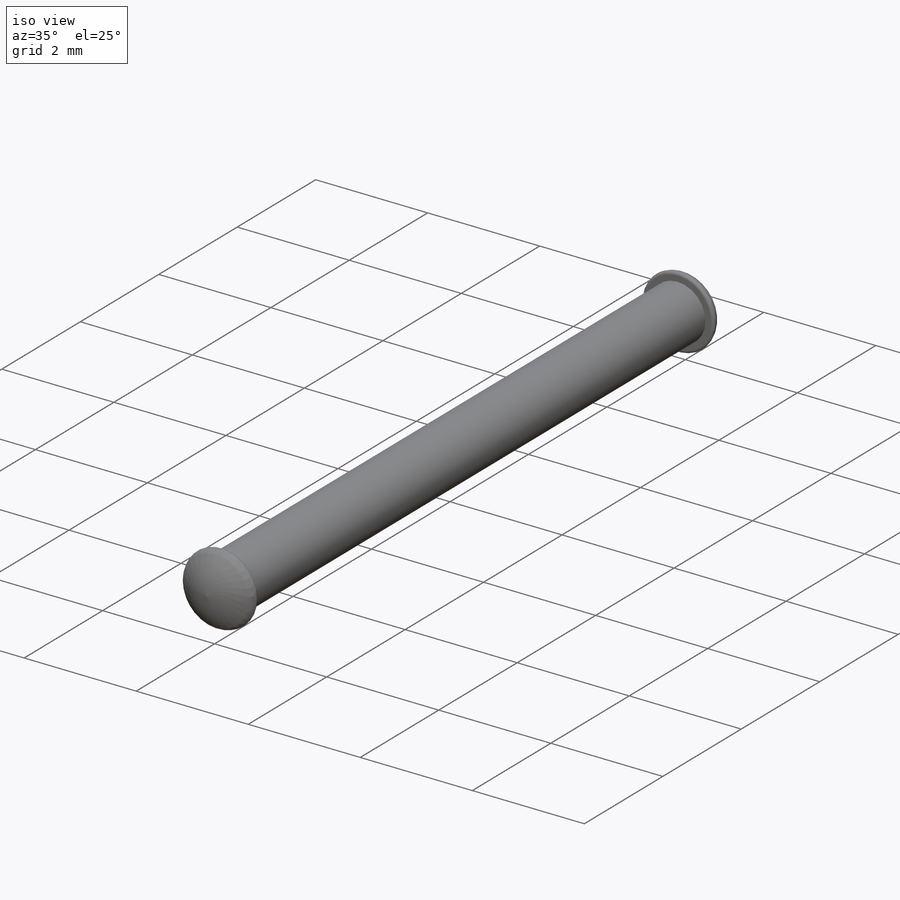
[diagram: iso view]
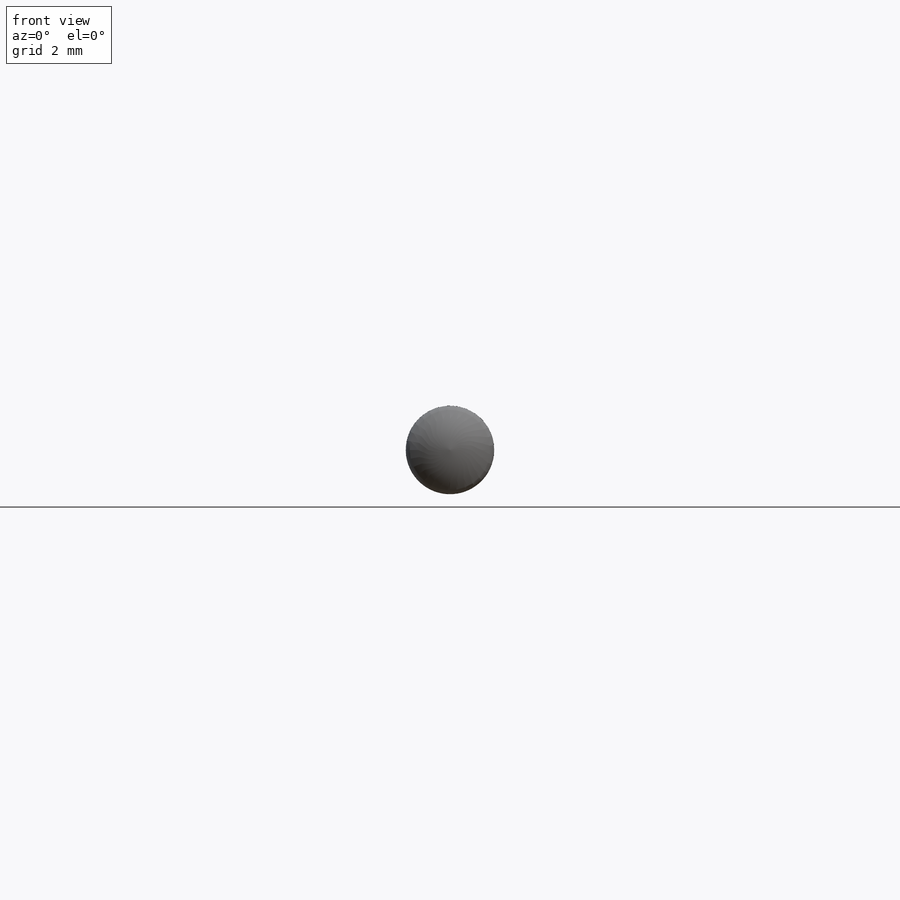
[diagram: front view]
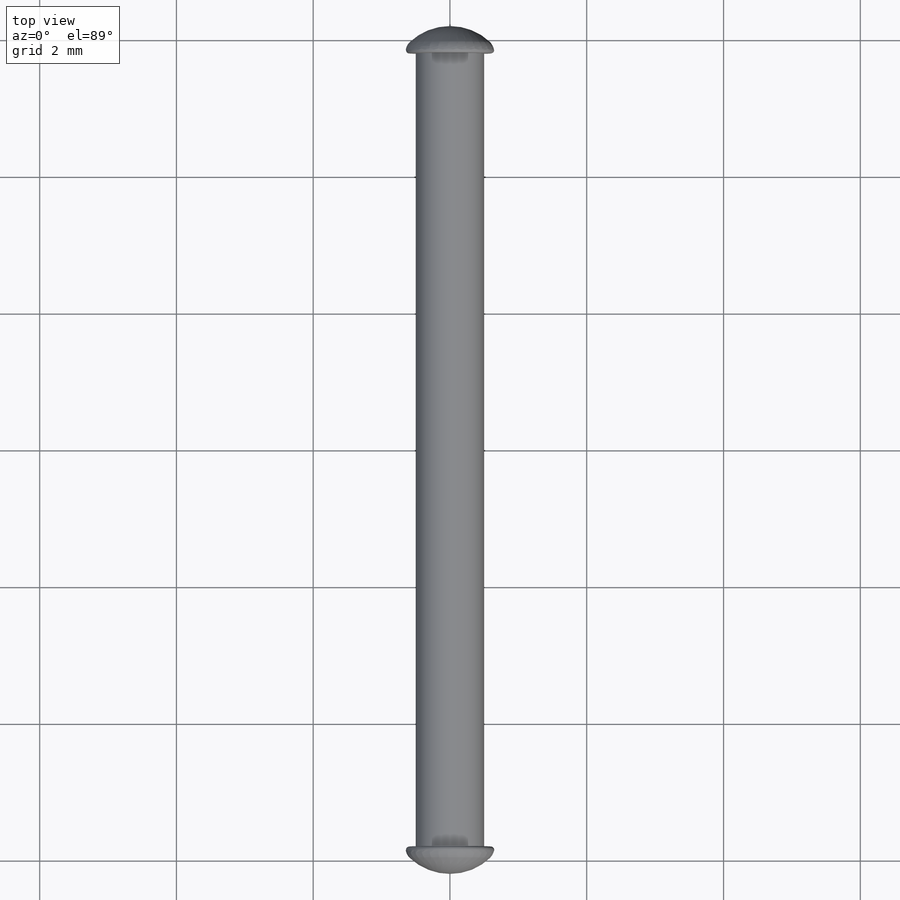
[diagram: top view]
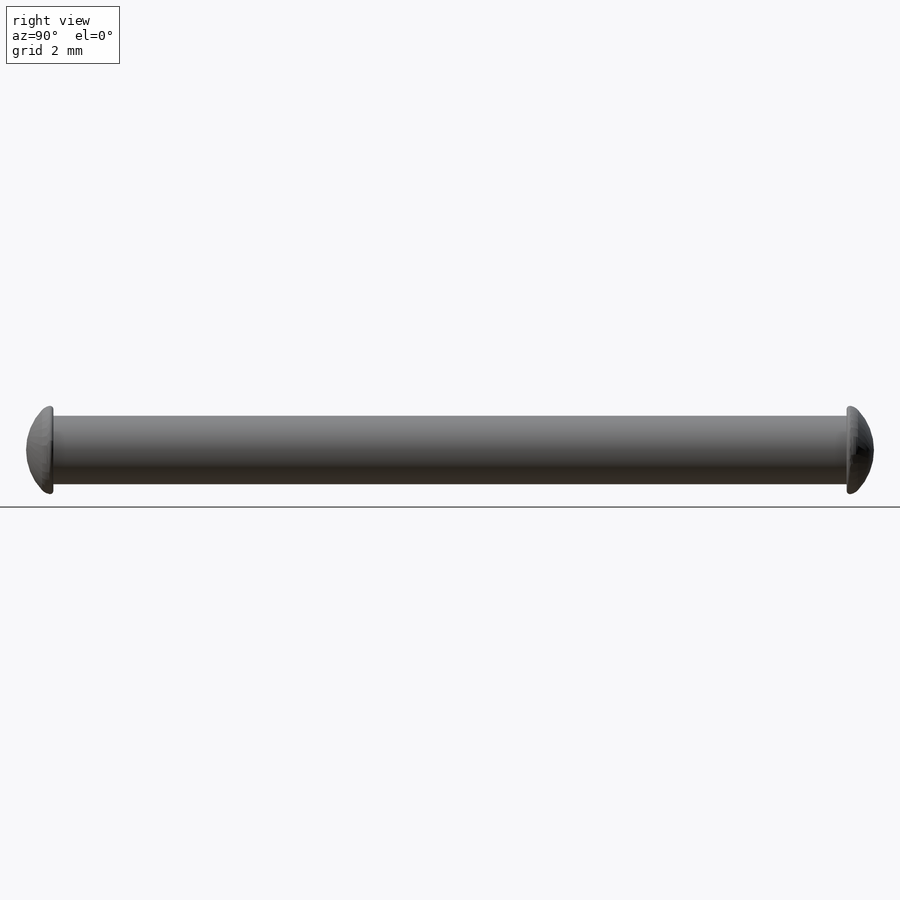
[diagram: right view]
SOLIDWORKS PART (.sldprt)
format: sldprt  version: not decoded by parser v0  size: 199,168 bytes
history: native  units: mm
features: sketch x2, extrude x2, fillet x2, material x1, dome x1, mirror x1 (+11 scaffold rows collapsed)
feature tree (20):
  scaffold x11  (default folders/planes/origin — collapsed)
  material  "Material <not specified>"
  sketch  "Sketch1"  dims[D1=1.0mm]
  extrude  "Boss-Extrude1"  Depth=11.6mm
  sketch  "Sketch2"  dims[D1=1.3mm]
  extrude  "Boss-Extrude2"  Depth=0.1mm
  dome  "Dome1"
  fillet  "Fillet1"  Radius=0.2mm
  fillet  "Fillet3"  Radius=0.05mm
  mirror  "Mirror2"
decode coverage: 6 of 8 modeling features carry decoded parameters
note: suppression state not decoded; provenance and decode notes live in map.json
